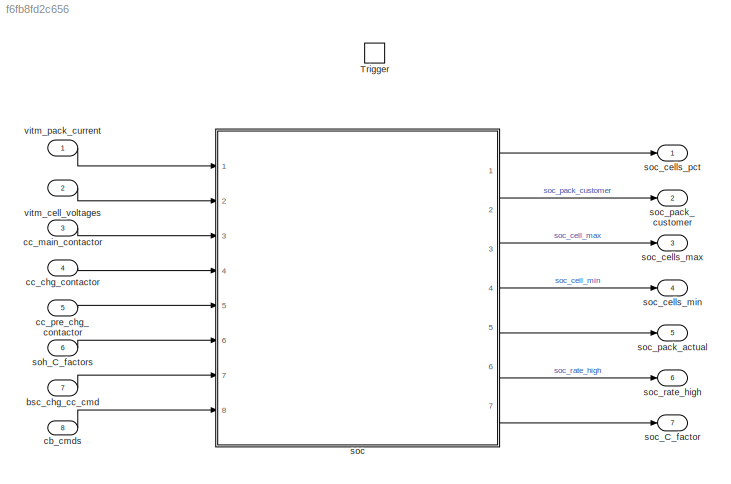
MODEL slx_f6fb8fd2c656
KIND model
CONFIG AbsTol = auto
CONFIG FixedStep = 0.1
CONFIG MaxStep = auto
CONFIG MinStep = auto
CONFIG RelTol = 1e-3
CONFIG SampleTimeConstraint = Unconstrained
CONFIG Solver = FixedStepAuto
CONFIG SolverMode = Auto
CONFIG SolverName = FixedStepAuto
CONFIG StartTime = 0.0
CONFIG StopTime = 10.0
BLOCK [TriggerPort] Trigger
  PortDimensions = 1
  Ports = []
  StatesWhenEnabling = held
  TriggerType = function-call
BLOCK [Inport] bsc_chg_cc_cmd
  IconDisplay = Port number
  Port = 7
BLOCK [Inport] cb_cmds
  IconDisplay = Port number
  OutDataTypeStr = boolean
  Port = 8
  PortDimensions = 40
BLOCK [Inport] cc_chg_contactor
  IconDisplay = Port number
  Port = 4
BLOCK [Inport] cc_main_contactor
  IconDisplay = Port number
  Port = 3
BLOCK [Inport] cc_pre_chg_contactor
  IconDisplay = Port number
  Port = 5
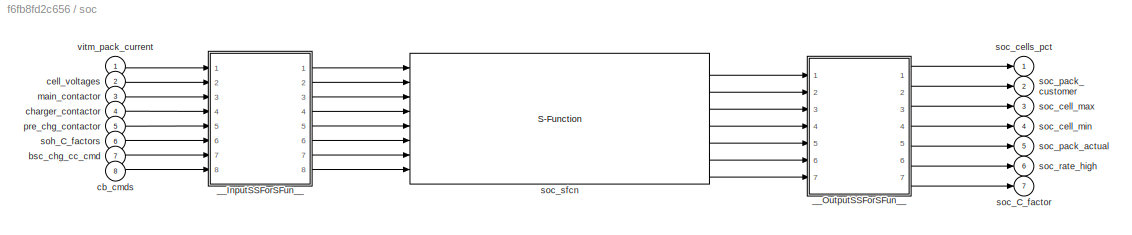
BLOCK [SubSystem] soc
  Ports = [8, 7]
  RequestExecContextInheritance = off
  Variant = off
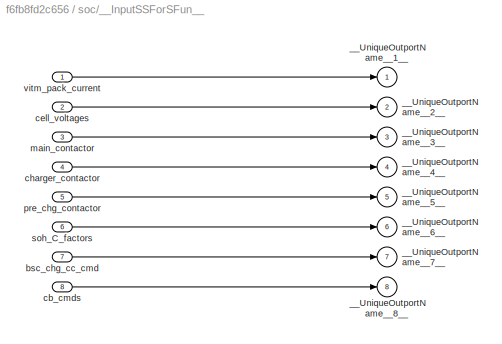
BLOCK [SubSystem] soc/__InputSSForSFun__
  PermitHierarchicalResolution = ExplicitOnly
  Ports = [8, 8]
  RequestExecContextInheritance = off
  Variant = off
BLOCK [Outport] soc/__InputSSForSFun__/__UniqueOutportName__1__
  IconDisplay = Port number
BLOCK [Outport] soc/__InputSSForSFun__/__UniqueOutportName__2__
  IconDisplay = Port number
  Port = 2
BLOCK [Outport] soc/__InputSSForSFun__/__UniqueOutportName__3__
  IconDisplay = Port number
  Port = 3
BLOCK [Outport] soc/__InputSSForSFun__/__UniqueOutportName__4__
  IconDisplay = Port number
  Port = 4
BLOCK [Outport] soc/__InputSSForSFun__/__UniqueOutportName__5__
  IconDisplay = Port number
  Port = 5
BLOCK [Outport] soc/__InputSSForSFun__/__UniqueOutportName__6__
  IconDisplay = Port number
  Port = 6
BLOCK [Outport] soc/__InputSSForSFun__/__UniqueOutportName__7__
  IconDisplay = Port number
  Port = 7
BLOCK [Outport] soc/__InputSSForSFun__/__UniqueOutportName__8__
  IconDisplay = Port number
  Port = 8
BLOCK [Inport] soc/__InputSSForSFun__/bsc_chg_cc_cmd
  IconDisplay = Port number
  Port = 7
BLOCK [Inport] soc/__InputSSForSFun__/cb_cmds
  IconDisplay = Port number
  Port = 8
BLOCK [Inport] soc/__InputSSForSFun__/cell_voltages
  IconDisplay = Port number
  Port = 2
  PortDimensions = 40
BLOCK [Inport] soc/__InputSSForSFun__/charger_contactor
  IconDisplay = Port number
  Port = 4
BLOCK [Inport] soc/__InputSSForSFun__/main_contactor
  IconDisplay = Port number
  Port = 3
BLOCK [Inport] soc/__InputSSForSFun__/pre_chg_contactor
  IconDisplay = Port number
  Port = 5
BLOCK [Inport] soc/__InputSSForSFun__/soh_C_factors
  IconDisplay = Port number
  Port = 6
BLOCK [Inport] soc/__InputSSForSFun__/vitm_pack_current
  IconDisplay = Port number
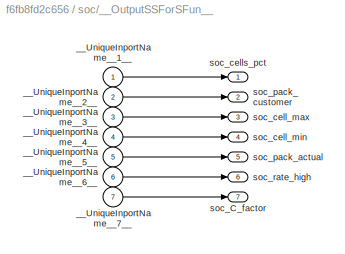
BLOCK [SubSystem] soc/__OutputSSForSFun__
  PermitHierarchicalResolution = ExplicitOnly
  Ports = [7, 7]
  RequestExecContextInheritance = off
  Variant = off
BLOCK [Inport] soc/__OutputSSForSFun__/__UniqueInportName__1__
  IconDisplay = Port number
BLOCK [Inport] soc/__OutputSSForSFun__/__UniqueInportName__2__
  IconDisplay = Port number
  Port = 2
BLOCK [Inport] soc/__OutputSSForSFun__/__UniqueInportName__3__
  IconDisplay = Port number
  Port = 3
BLOCK [Inport] soc/__OutputSSForSFun__/__UniqueInportName__4__
  IconDisplay = Port number
  Port = 4
BLOCK [Inport] soc/__OutputSSForSFun__/__UniqueInportName__5__
  IconDisplay = Port number
  Port = 5
BLOCK [Inport] soc/__OutputSSForSFun__/__UniqueInportName__6__
  IconDisplay = Port number
  Port = 6
BLOCK [Inport] soc/__OutputSSForSFun__/__UniqueInportName__7__
  IconDisplay = Port number
  Port = 7
BLOCK [Outport] soc/__OutputSSForSFun__/soc_C_factor
  IconDisplay = Port number
  Port = 7
BLOCK [Outport] soc/__OutputSSForSFun__/soc_cell_max
  IconDisplay = Port number
  Port = 3
BLOCK [Outport] soc/__OutputSSForSFun__/soc_cell_min
  IconDisplay = Port number
  Port = 4
BLOCK [Outport] soc/__OutputSSForSFun__/soc_cells_pct
  IconDisplay = Port number
BLOCK [Outport] soc/__OutputSSForSFun__/soc_pack_actual
  IconDisplay = Port number
  Port = 5
BLOCK [Outport] soc/__OutputSSForSFun__/soc_pack_customer
  IconDisplay = Port number
  Port = 2
BLOCK [Outport] soc/__OutputSSForSFun__/soc_rate_high
  IconDisplay = Port number
  Port = 6
BLOCK [Inport] soc/bsc_chg_cc_cmd
  IconDisplay = Port number
  Port = 7
BLOCK [Inport] soc/cb_cmds
  IconDisplay = Port number
  Port = 8
BLOCK [Inport] soc/cell_voltages
  IconDisplay = Port number
  Port = 2
  PortDimensions = 40
BLOCK [Inport] soc/charger_contactor
  IconDisplay = Port number
  Port = 4
BLOCK [Inport] soc/main_contactor
  IconDisplay = Port number
  Port = 3
BLOCK [Inport] soc/pre_chg_contactor
  IconDisplay = Port number
  Port = 5
BLOCK [Outport] soc/soc_C_factor
  IconDisplay = Port number
  Port = 7
BLOCK [Outport] soc/soc_cell_max
  IconDisplay = Port number
  Port = 3
BLOCK [Outport] soc/soc_cell_min
  IconDisplay = Port number
  Port = 4
BLOCK [Outport] soc/soc_cells_pct
  IconDisplay = Port number
BLOCK [Outport] soc/soc_pack_actual
  IconDisplay = Port number
  Port = 5
BLOCK [Outport] soc/soc_pack_customer
  IconDisplay = Port number
  Port = 2
BLOCK [Outport] soc/soc_rate_high
  IconDisplay = Port number
  Port = 6
BLOCK [S-Function] soc/soc_sfcn
  CopyFcn = if ~strcmp(get_param(gcb,'Linkstatus'),'none') && ...\n~strcmp(get_param(gcb,'Linkstatus'),'implicit')      \n  set_param(gcb,'LinkStatus','none');                \nend
  EnableBusSupport = off
  FunctionName = soc0_sf
  Parameters = sfcnParam1, sfcnParam2, sfcnParam3, sfcnParam4, sfcnParam5, sfcnParam6, sfcnParam7, sfcnParam8, sfcnParam9, sfcnParam10, sfcnParam11, sfcnParam12, sfcnParam13, sfcnParam14
  Ports = [8, 7]
  SFunctionDeploymentMode = off
BLOCK [Inport] soc/soh_C_factors
  IconDisplay = Port number
  Port = 6
BLOCK [Inport] soc/vitm_pack_current
  IconDisplay = Port number
BLOCK [Outport] soc_C_factor
  IconDisplay = Port number
  InitialOutput = ones(40,1)
  Port = 7
BLOCK [Outport] soc_cells_max
  IconDisplay = Port number
  Port = 3
BLOCK [Outport] soc_cells_min
  IconDisplay = Port number
  Port = 4
BLOCK [Outport] soc_cells_pct
  IconDisplay = Port number
BLOCK [Outport] soc_pack_actual
  IconDisplay = Port number
  Port = 5
BLOCK [Outport] soc_pack_customer
  IconDisplay = Port number
  Port = 2
BLOCK [Outport] soc_rate_high
  IconDisplay = Port number
  Port = 6
BLOCK [Inport] soh_C_factors
  IconDisplay = Port number
  Port = 6
  PortDimensions = 40
BLOCK [Inport] vitm_cell_voltages
  IconDisplay = Port number
  Port = 2
  PortDimensions = 40
BLOCK [Inport] vitm_pack_current
  IconDisplay = Port number
LINE bsc_chg_cc_cmd:1 -> soc:7
LINE cb_cmds:1 -> soc:8
LINE cc_chg_contactor:1 -> soc:4
LINE cc_main_contactor:1 -> soc:3
LINE cc_pre_chg_contactor:1 -> soc:5
LINE soc/__InputSSForSFun__/bsc_chg_cc_cmd:1 -> soc/__InputSSForSFun__/__UniqueOutportName__7__:1
LINE soc/__InputSSForSFun__/cb_cmds:1 -> soc/__InputSSForSFun__/__UniqueOutportName__8__:1
LINE soc/__InputSSForSFun__/cell_voltages:1 -> soc/__InputSSForSFun__/__UniqueOutportName__2__:1
LINE soc/__InputSSForSFun__/charger_contactor:1 -> soc/__InputSSForSFun__/__UniqueOutportName__4__:1
LINE soc/__InputSSForSFun__/main_contactor:1 -> soc/__InputSSForSFun__/__UniqueOutportName__3__:1
LINE soc/__InputSSForSFun__/pre_chg_contactor:1 -> soc/__InputSSForSFun__/__UniqueOutportName__5__:1
LINE soc/__InputSSForSFun__/soh_C_factors:1 -> soc/__InputSSForSFun__/__UniqueOutportName__6__:1
LINE soc/__InputSSForSFun__/vitm_pack_current:1 -> soc/__InputSSForSFun__/__UniqueOutportName__1__:1
LINE soc/__InputSSForSFun__:1 -> soc/soc_sfcn:1
LINE soc/__InputSSForSFun__:2 -> soc/soc_sfcn:2
LINE soc/__InputSSForSFun__:3 -> soc/soc_sfcn:3
LINE soc/__InputSSForSFun__:4 -> soc/soc_sfcn:4
LINE soc/__InputSSForSFun__:5 -> soc/soc_sfcn:5
LINE soc/__InputSSForSFun__:6 -> soc/soc_sfcn:6
LINE soc/__InputSSForSFun__:7 -> soc/soc_sfcn:7
LINE soc/__InputSSForSFun__:8 -> soc/soc_sfcn:8
LINE soc/__OutputSSForSFun__/__UniqueInportName__1__:1 -> soc/__OutputSSForSFun__/soc_cells_pct:1
LINE soc/__OutputSSForSFun__/__UniqueInportName__2__:1 -> soc/__OutputSSForSFun__/soc_pack_customer:1
LINE soc/__OutputSSForSFun__/__UniqueInportName__3__:1 -> soc/__OutputSSForSFun__/soc_cell_max:1
LINE soc/__OutputSSForSFun__/__UniqueInportName__4__:1 -> soc/__OutputSSForSFun__/soc_cell_min:1
LINE soc/__OutputSSForSFun__/__UniqueInportName__5__:1 -> soc/__OutputSSForSFun__/soc_pack_actual:1
LINE soc/__OutputSSForSFun__/__UniqueInportName__6__:1 -> soc/__OutputSSForSFun__/soc_rate_high:1
LINE soc/__OutputSSForSFun__/__UniqueInportName__7__:1 -> soc/__OutputSSForSFun__/soc_C_factor:1
LINE soc/__OutputSSForSFun__:1 -> soc/soc_cells_pct:1
LINE soc/__OutputSSForSFun__:2 -> soc/soc_pack_customer:1
LINE soc/__OutputSSForSFun__:3 -> soc/soc_cell_max:1
LINE soc/__OutputSSForSFun__:4 -> soc/soc_cell_min:1
LINE soc/__OutputSSForSFun__:5 -> soc/soc_pack_actual:1
LINE soc/__OutputSSForSFun__:6 -> soc/soc_rate_high:1
LINE soc/__OutputSSForSFun__:7 -> soc/soc_C_factor:1
LINE soc/bsc_chg_cc_cmd:1 -> soc/__InputSSForSFun__:7
LINE soc/cb_cmds:1 -> soc/__InputSSForSFun__:8
LINE soc/cell_voltages:1 -> soc/__InputSSForSFun__:2
LINE soc/charger_contactor:1 -> soc/__InputSSForSFun__:4
LINE soc/main_contactor:1 -> soc/__InputSSForSFun__:3
LINE soc/pre_chg_contactor:1 -> soc/__InputSSForSFun__:5
LINE soc/soc_sfcn:1 -> soc/__OutputSSForSFun__:1
LINE soc/soc_sfcn:2 -> soc/__OutputSSForSFun__:2
LINE soc/soc_sfcn:3 -> soc/__OutputSSForSFun__:3
LINE soc/soc_sfcn:4 -> soc/__OutputSSForSFun__:4
LINE soc/soc_sfcn:5 -> soc/__OutputSSForSFun__:5
LINE soc/soc_sfcn:6 -> soc/__OutputSSForSFun__:6
LINE soc/soc_sfcn:7 -> soc/__OutputSSForSFun__:7
LINE soc/soh_C_factors:1 -> soc/__InputSSForSFun__:6
LINE soc/vitm_pack_current:1 -> soc/__InputSSForSFun__:1
LINE soc:1 -> soc_cells_pct:1
LINE soc:2 -> soc_pack_customer:1
LINE soc:3 -> soc_cells_max:1
LINE soc:4 -> soc_cells_min:1
LINE soc:5 -> soc_pack_actual:1
LINE soc:6 -> soc_rate_high:1
LINE soc:7 -> soc_C_factor:1
LINE soh_C_factors:1 -> soc:6
LINE vitm_cell_voltages:1 -> soc:2
LINE vitm_pack_current:1 -> soc:1
